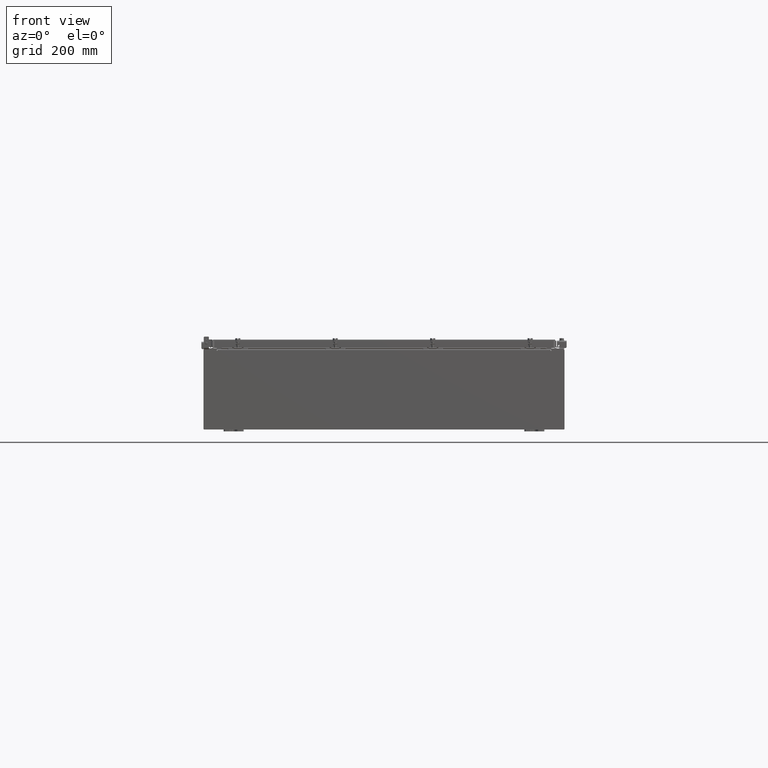
[diagram: clean part render]
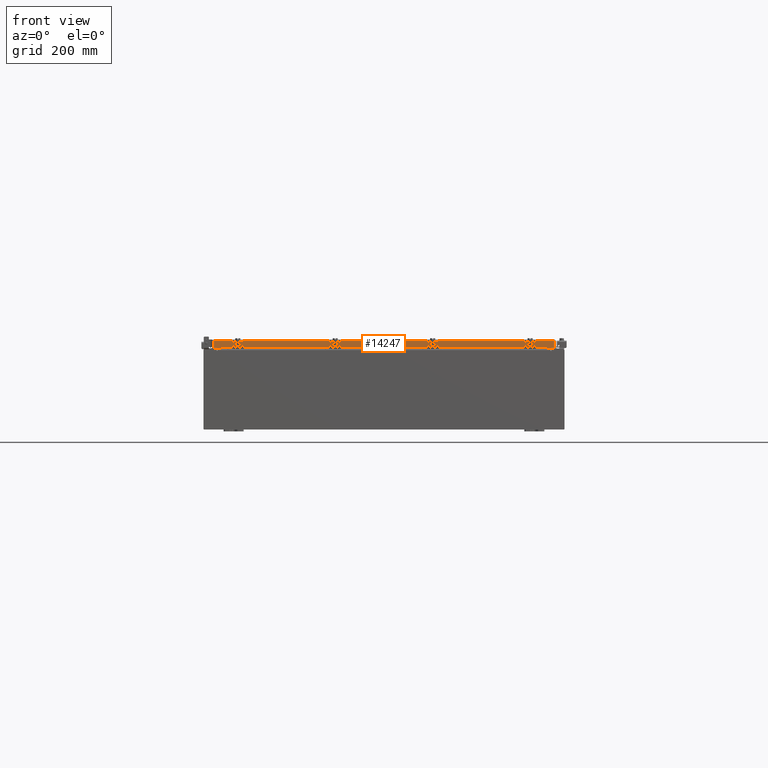
[diagram: same view with one face highlighted and labeled with its STEP entity id]
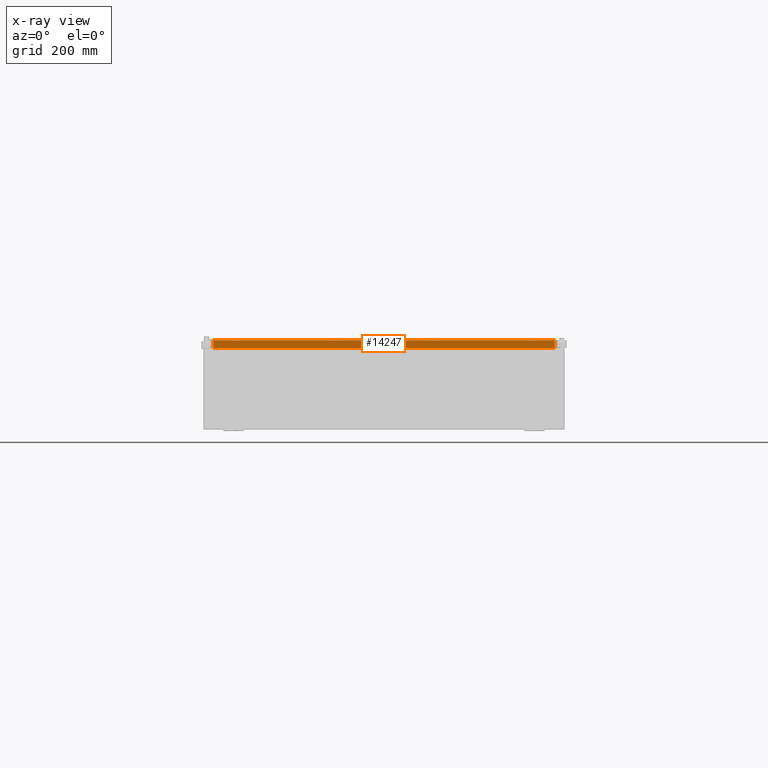
[diagram: x-ray of the same camera — body ghosted, the highlighted face saturated]
A machine part, front view. The second image highlights one B-rep face of the part: STEP entity #14247.
The next image is the same camera in x-ray: the body ghosted, the highlighted face saturated — about 0% of this face is hidden behind the body in this view.
In plain terms, the highlighted planar face has unit normal (-0, 1, -0).
Its self-contained STEP definition (entity closure, byte-faithful):
#1 = EDGE_LOOP ( 'NONE', ( #140, #4138, #2619, #8227, #23439, #4942 ) ) ;
#59 = LINE ( 'NONE', #27301, #6343 ) ;
#140 = ORIENTED_EDGE ( 'NONE', *, *, #15032, .F. ) ;
#923 = DIRECTION ( 'NONE',  ( 0.0000000000000000000, 5.637761885544721100E-015, 1.000000000000000000 ) ) ;
#948 = DIRECTION ( 'NONE',  ( -0.0000000000000000000, -5.637761885544721800E-015, -1.000000000000000000 ) ) ;
#1129 = VERTEX_POINT ( 'NONE', #10021 ) ;
#1515 = LINE ( 'NONE', #17884, #12168 ) ;
#1707 = EDGE_CURVE ( 'NONE', #22764, #2370, #59, .T. ) ;
#1804 = LINE ( 'NONE', #12082, #18808 ) ;
#2370 = VERTEX_POINT ( 'NONE', #9431 ) ;
#2619 = ORIENTED_EDGE ( 'NONE', *, *, #1707, .F. ) ;
#4138 = ORIENTED_EDGE ( 'NONE', *, *, #21394, .T. ) ;
#4710 = VECTOR ( 'NONE', #16774, 39.37007874015748100 ) ;
#4942 = ORIENTED_EDGE ( 'NONE', *, *, #13703, .F. ) ;
#6236 = DIRECTION ( 'NONE',  ( 0.0000000000000000000, -5.637761885544721800E-015, -1.000000000000000000 ) ) ;
#6322 = CARTESIAN_POINT ( 'NONE',  ( -16.98915786437626400, -29.09400000000000500, 1.642858579540497200E-013 ) ) ;
#6343 = VECTOR ( 'NONE', #20828, 39.37007874015748100 ) ;
#6473 = LINE ( 'NONE', #25306, #17806 ) ;
#8154 = CARTESIAN_POINT ( 'NONE',  ( 16.98915786437627100, -29.09400000000000800, -0.8499999999999996400 ) ) ;
#8227 = ORIENTED_EDGE ( 'NONE', *, *, #14386, .F. ) ;
#9431 = CARTESIAN_POINT ( 'NONE',  ( -16.98915786437626400, -29.09400000000000800, -0.8499999999999954300 ) ) ;
#10021 = CARTESIAN_POINT ( 'NONE',  ( 16.23915786437626700, -29.09400000000000800, -0.8499999999999972000 ) ) ;
#10393 = DIRECTION ( 'NONE',  ( -1.000000000000000000, -0.0000000000000000000, 1.239713195391617100E-016 ) ) ;
#11530 = CARTESIAN_POINT ( 'NONE',  ( -16.98915786437626400, -29.09400000000000500, -0.08769999999999547600 ) ) ;
#11552 = PLANE ( 'NONE',  #22110 ) ;
#12082 = CARTESIAN_POINT ( 'NONE',  ( 16.23915786437627100, -29.09400000000000800, -0.8499999999999972000 ) ) ;
#12168 = VECTOR ( 'NONE', #948, 39.37007874015748100 ) ;
#13643 = DIRECTION ( 'NONE',  ( -6.989207801985715000E-031, 1.000000000000000000, -5.637761885544721100E-015 ) ) ;
#13703 = EDGE_CURVE ( 'NONE', #20617, #23855, #1515, .T. ) ;
#14247 = ADVANCED_FACE ( 'NONE', ( #21489 ), #11552, .F. ) ;
#14386 = EDGE_CURVE ( 'NONE', #1129, #22764, #1804, .T. ) ;
#14674 = VERTEX_POINT ( 'NONE', #11530 ) ;
#15032 = EDGE_CURVE ( 'NONE', #14674, #20617, #16063, .T. ) ;
#15794 = VECTOR ( 'NONE', #6236, 39.37007874015748100 ) ;
#16063 = LINE ( 'NONE', #16678, #4710 ) ;
#16678 = CARTESIAN_POINT ( 'NONE',  ( 17.07800000000000300, -29.09400000000000500, -0.08769999999999547600 ) ) ;
#16774 = DIRECTION ( 'NONE',  ( 1.000000000000000000, 6.989207801985715000E-031, -3.922586267643549100E-045 ) ) ;
#17806 = VECTOR ( 'NONE', #10393, 39.37007874015748100 ) ;
#17884 = CARTESIAN_POINT ( 'NONE',  ( 16.98915786437627100, -29.09400000000000500, -0.07469999999999958600 ) ) ;
#18808 = VECTOR ( 'NONE', #22744, 39.37007874015748100 ) ;
#18909 = CARTESIAN_POINT ( 'NONE',  ( 16.98915786437627100, -29.09400000000000500, -0.08769999999999549000 ) ) ;
#19984 = CARTESIAN_POINT ( 'NONE',  ( 2.033440117909724100E-029, -29.09400000000000500, 1.642858579540497200E-013 ) ) ;
#20617 = VERTEX_POINT ( 'NONE', #18909 ) ;
#20828 = DIRECTION ( 'NONE',  ( -1.000000000000000000, -0.0000000000000000000, 1.239713195391617100E-016 ) ) ;
#21298 = EDGE_CURVE ( 'NONE', #23855, #1129, #6473, .T. ) ;
#21394 = EDGE_CURVE ( 'NONE', #14674, #2370, #22200, .T. ) ;
#21489 = FACE_OUTER_BOUND ( 'NONE', #1, .T. ) ;
#21557 = CARTESIAN_POINT ( 'NONE',  ( -16.23915786437626700, -29.09400000000000800, -0.8499999999999972000 ) ) ;
#22110 = AXIS2_PLACEMENT_3D ( 'NONE', #19984, #13643, #923 ) ;
#22200 = LINE ( 'NONE', #6322, #15794 ) ;
#22744 = DIRECTION ( 'NONE',  ( -1.000000000000000000, 0.0000000000000000000, 0.0000000000000000000 ) ) ;
#22764 = VERTEX_POINT ( 'NONE', #21557 ) ;
#23439 = ORIENTED_EDGE ( 'NONE', *, *, #21298, .F. ) ;
#23855 = VERTEX_POINT ( 'NONE', #8154 ) ;
#25306 = CARTESIAN_POINT ( 'NONE',  ( 17.07800000000000700, -29.09400000000000800, -0.8499999999999996400 ) ) ;
#27301 = CARTESIAN_POINT ( 'NONE',  ( 17.07800000000000700, -29.09400000000000800, -0.8499999999999996400 ) ) ;